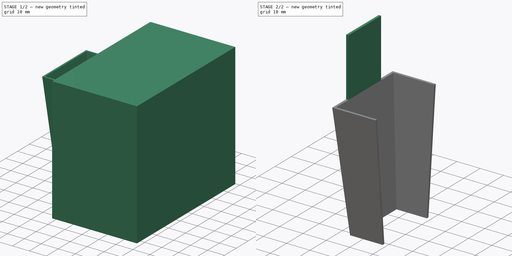
[diagram: build sequence overview — one tinted view per stage of 2, left to right]
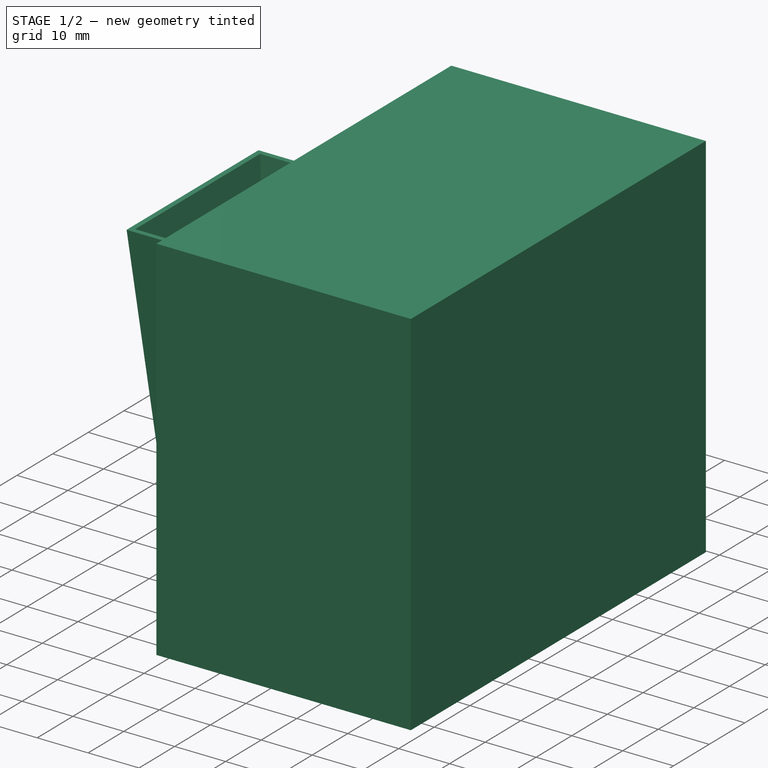
[diagram: stage 1 of 2 — iso view after this stage's code; geometry added in this stage tinted green]
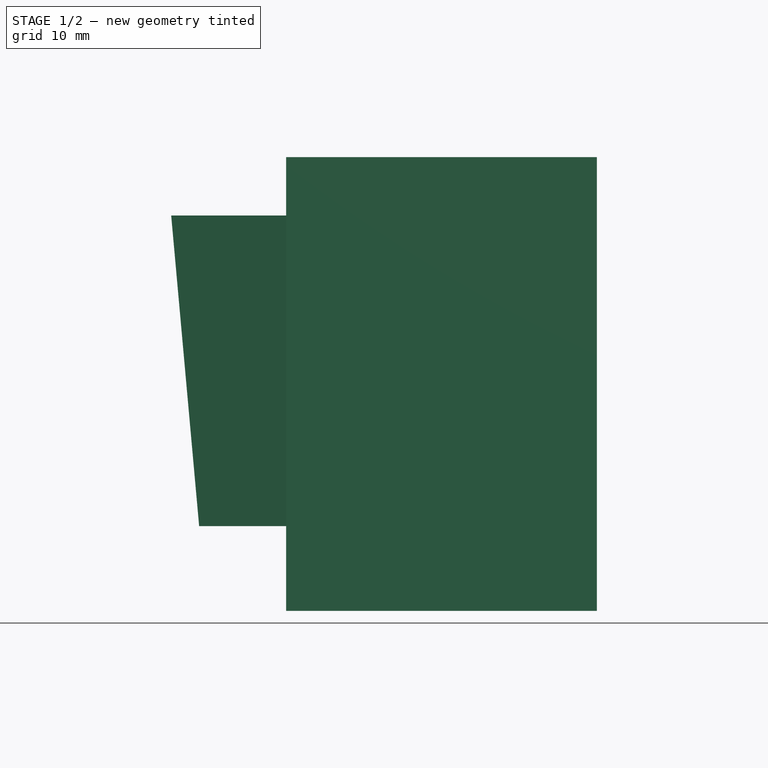
[diagram: stage 1 of 2 — front view after this stage's code; geometry added in this stage tinted green]
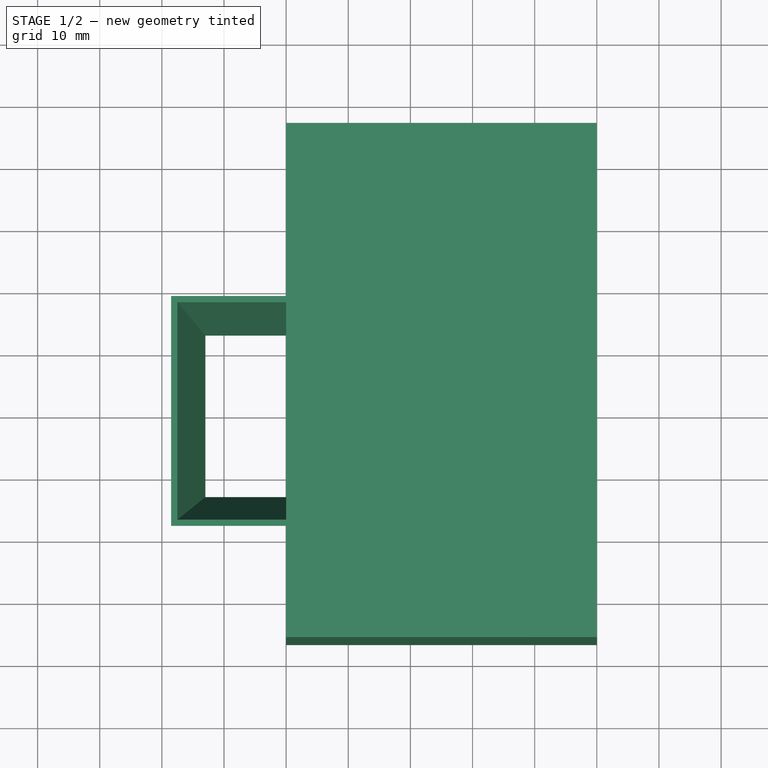
[diagram: stage 1 of 2 — top view after this stage's code; geometry added in this stage tinted green]
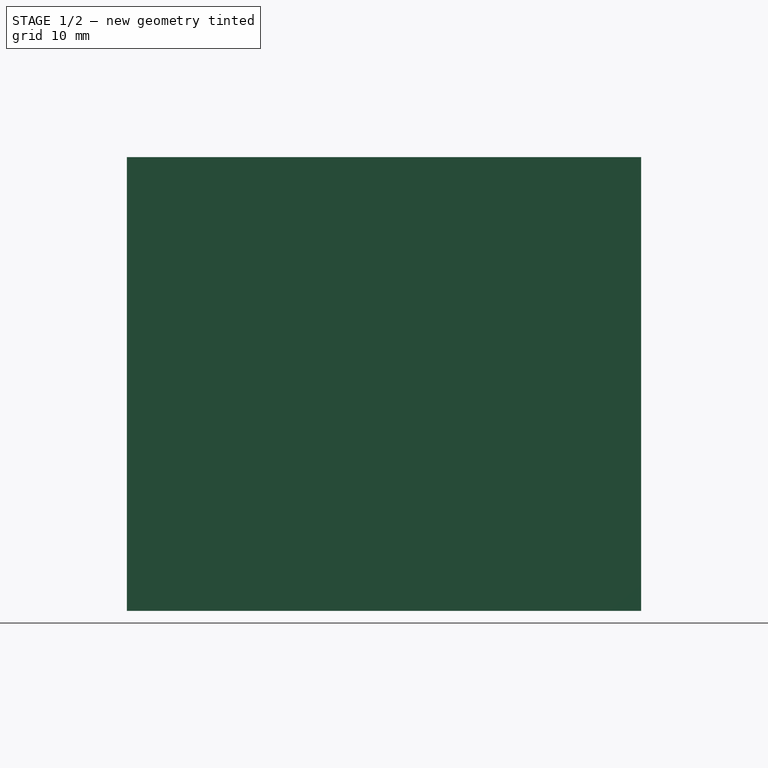
[diagram: stage 1 of 2 — right view after this stage's code; geometry added in this stage tinted green]
FCSTD DOCUMENT  (FreeCAD 1.0R39109 (Git))
Label: model3
License: All rights reserved
LicenseURL: https://en.wikipedia.org/wiki/All_rights_reserved
objects: Sketcher::SketchObject×4, PartDesign::Pad×2, PartDesign::Body×2, PartDesign::Plane×1, PartDesign::AdditiveLoft×1, PartDesign::Boolean×1
note: 22 computed .brp shape members not serialized (recipe doc carries the construction recipe); baked Part::Feature solids carry a one-line shape summary decoded from their .brp

FEATURE [Sketcher::SketchObject] Sketch
  ArcFitTolerance = 1e-06
  AttachmentSupport = -> [XY_Plane]
  FullyConstrained = true
  MakeInternals = false
  MapMode = 5
  sketch-geometry (10):
    g0: LineSegment StartX=-14 StartY=14 StartZ=0 EndX=-14 EndY=-14 EndZ=0
    g1: LineSegment StartX=-14 StartY=-14 StartZ=0 EndX=14 EndY=-14 EndZ=0
    g2: LineSegment StartX=14 StartY=-14 StartZ=0 EndX=14 EndY=14 EndZ=0
    g3: LineSegment StartX=14 StartY=14 StartZ=0 EndX=-14 EndY=14 EndZ=0
    g4: GeomPoint [constr] X=-1e-16 Y=-3e-16 Z=0
    g5: LineSegment StartX=-13 StartY=13 StartZ=0 EndX=-13 EndY=-13 EndZ=0
    g6: LineSegment StartX=-13 StartY=-13 StartZ=0 EndX=13 EndY=-13 EndZ=0
    g7: LineSegment StartX=13 StartY=-13 StartZ=0 EndX=13 EndY=13 EndZ=0
    g8: LineSegment StartX=13 StartY=13 StartZ=0 EndX=-13 EndY=13 EndZ=0
    g9: GeomPoint [constr] X=-1e-16 Y=-3e-16 Z=0
  constraints (24):
    c: Coincident(g0,g1)
    c: Coincident(g1,g2)
    c: Coincident(g2,g3)
    c: Coincident(g3,g0)
    c: Vertical(g0)
    c: Vertical(g2)
    c: Horizontal(g1)
    c: Horizontal(g3)
    c: Symmetric(g2,g0,g4)
    c: Distance(g0,g2) = 28
    c: Coincident(g4,g-1)
    c: Equal(g3,g2)
    c: Coincident(g5,g6)
    c: Coincident(g6,g7)
    c: Coincident(g7,g8)
    c: Coincident(g8,g5)
    c: Vertical(g5)
    c: Vertical(g7)
    c: Horizontal(g6)
    c: Horizontal(g8)
    c: Symmetric(g7,g5,g9)
    c: Coincident(g9,g4)
    c: DistanceX(g8,g8) = 26
    c: Equal(g8,g7)
FEATURE [PartDesign::Plane] DatumPlane
  AttachmentOffset = pos=(0,0,50) rot=(0,0,1;0rad)
  AttachmentSupport = -> [Sketch]
  Length = 60
  MapMode = 2
  Placement = pos=(0,0,50) rot=(0,0,1;0rad)
  ResizeMode = 0
  Width = 60
FEATURE [Sketcher::SketchObject] Sketch001
  ArcFitTolerance = 1e-06
  AttachmentSupport = -> [DatumPlane]
  FullyConstrained = true
  MakeInternals = false
  MapMode = 5
  Placement = pos=(0,0,50) rot=(0,0,1;0rad)
  sketch-geometry (10):
    g0: LineSegment StartX=-18.5 StartY=18.5 StartZ=0 EndX=-18.5 EndY=-18.5 EndZ=0
    g1: LineSegment StartX=-18.5 StartY=-18.5 StartZ=0 EndX=18.5 EndY=-18.5 EndZ=0
    g2: LineSegment StartX=18.5 StartY=-18.5 StartZ=0 EndX=18.5 EndY=18.5 EndZ=0
    g3: LineSegment StartX=18.5 StartY=18.5 StartZ=0 EndX=-18.5 EndY=18.5 EndZ=0
    g4: GeomPoint [constr] X=-2e-16 Y=0 Z=0
    g5: LineSegment StartX=-17.5 StartY=17.5 StartZ=0 EndX=-17.5 EndY=-17.5 EndZ=0
    g6: LineSegment StartX=-17.5 StartY=-17.5 StartZ=0 EndX=17.5 EndY=-17.5 EndZ=0
    g7: LineSegment StartX=17.5 StartY=-17.5 StartZ=0 EndX=17.5 EndY=17.5 EndZ=0
    g8: LineSegment StartX=17.5 StartY=17.5 StartZ=0 EndX=-17.5 EndY=17.5 EndZ=0
    g9: GeomPoint [constr] X=-2e-16 Y=0 Z=0
  constraints (24):
    c: Coincident(g0,g1)
    c: Coincident(g1,g2)
    c: Coincident(g2,g3)
    c: Coincident(g3,g0)
    c: Vertical(g0)
    c: Vertical(g2)
    c: Horizontal(g1)
    c: Horizontal(g3)
    c: Symmetric(g2,g0,g4)
    c: Distance(g0,g2) = 37
    c: Coincident(g4,g-1)
    c: Equal(g3,g2)
    c: Coincident(g5,g6)
    c: Coincident(g6,g7)
    c: Coincident(g7,g8)
    c: Coincident(g8,g5)
    c: Vertical(g5)
    c: Vertical(g7)
    c: Horizontal(g6)
    c: Horizontal(g8)
    c: Symmetric(g7,g5,g9)
    c: Distance(g5,g7) = 35
    c: Coincident(g9,g4)
    c: Equal(g8,g7)
FEATURE [PartDesign::AdditiveLoft] AdditiveLoft
  Closed = false
  Profile = -> Sketch
  Ruled = false
  Sections = -> [Sketch001]
  Suppressed = false
FEATURE [Sketcher::SketchObject] Sketch002
  ArcFitTolerance = 1e-06
  AttachmentSupport = -> [YZ_Plane001]
  FullyConstrained = false
  MakeInternals = false
  MapMode = 5
  Placement = pos=(0,0,0) rot=(0.57735,0.57735,0.57735;2.0944rad)
  sketch-geometry (4):
    g0: LineSegment StartX=-36.5784 StartY=59.3879 StartZ=0 EndX=-36.5784 EndY=-13.6394 EndZ=0
    g1: LineSegment StartX=-36.5784 StartY=-13.6394 StartZ=0 EndX=46.1913 EndY=-13.6394 EndZ=0
    g2: LineSegment StartX=46.1913 StartY=-13.6394 StartZ=0 EndX=46.1913 EndY=59.3879 EndZ=0
    g3: LineSegment StartX=46.1913 StartY=59.3879 StartZ=0 EndX=-36.5784 EndY=59.3879 EndZ=0
  constraints (8):
    c: Coincident(g0,g1)
    c: Coincident(g1,g2)
    c: Coincident(g2,g3)
    c: Coincident(g3,g0)
    c: Vertical(g0)
    c: Vertical(g2)
    c: Horizontal(g1)
    c: Horizontal(g3)
FEATURE [PartDesign::Pad] Pad
  Direction = (1,0,0)
  Length = 50
  Length2 = 10
  Placement = pos=(0,0,0) rot=(1,1,1;2.0944rad)
  Profile = -> Sketch002
  ReferenceAxis = -> Sketch002 [N_Axis]
  Refine = true
  Suppressed = false
  Type = 0
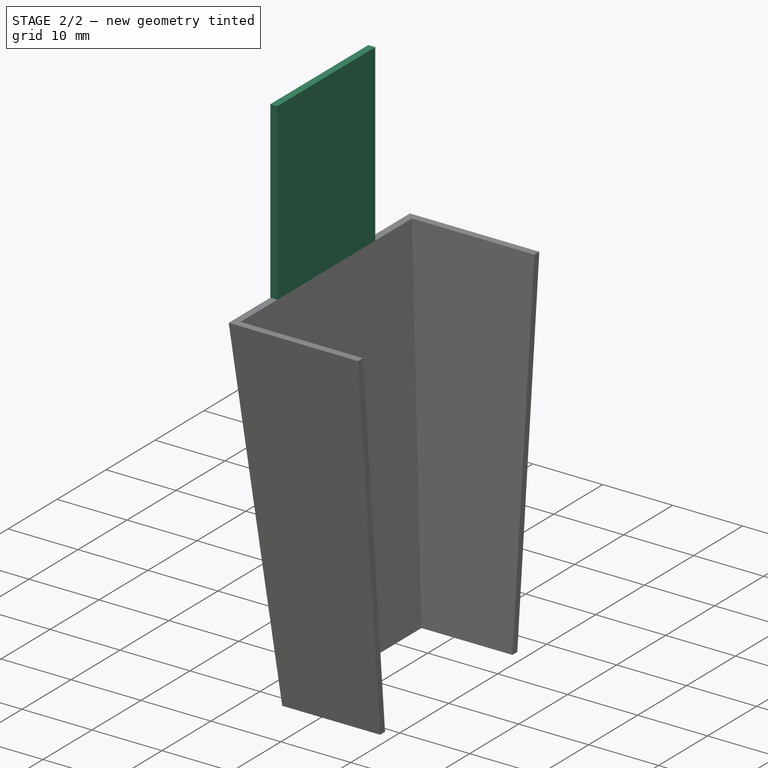
[diagram: stage 2 of 2 — iso view after this stage's code; geometry added in this stage tinted green]
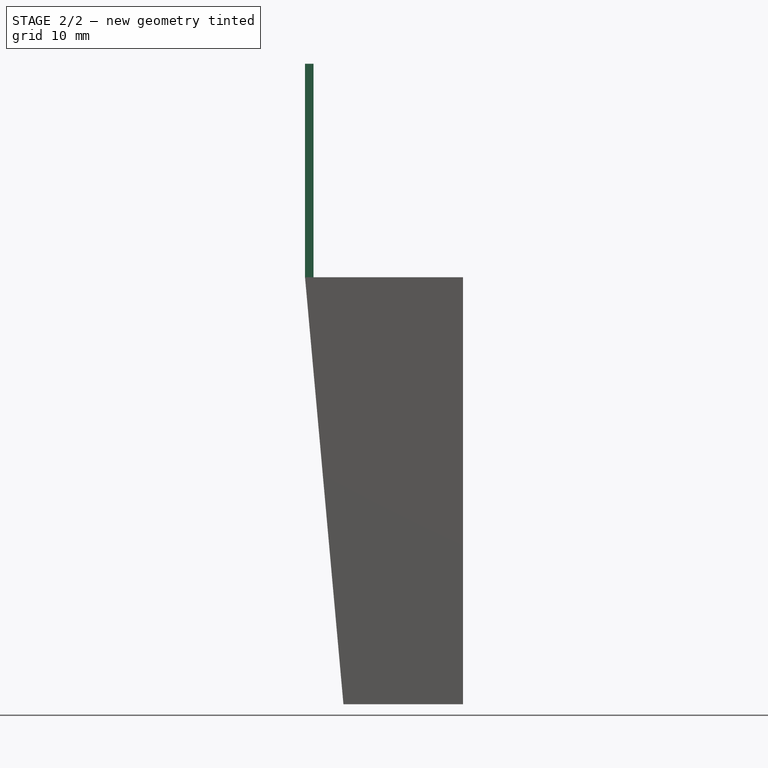
[diagram: stage 2 of 2 — front view after this stage's code; geometry added in this stage tinted green]
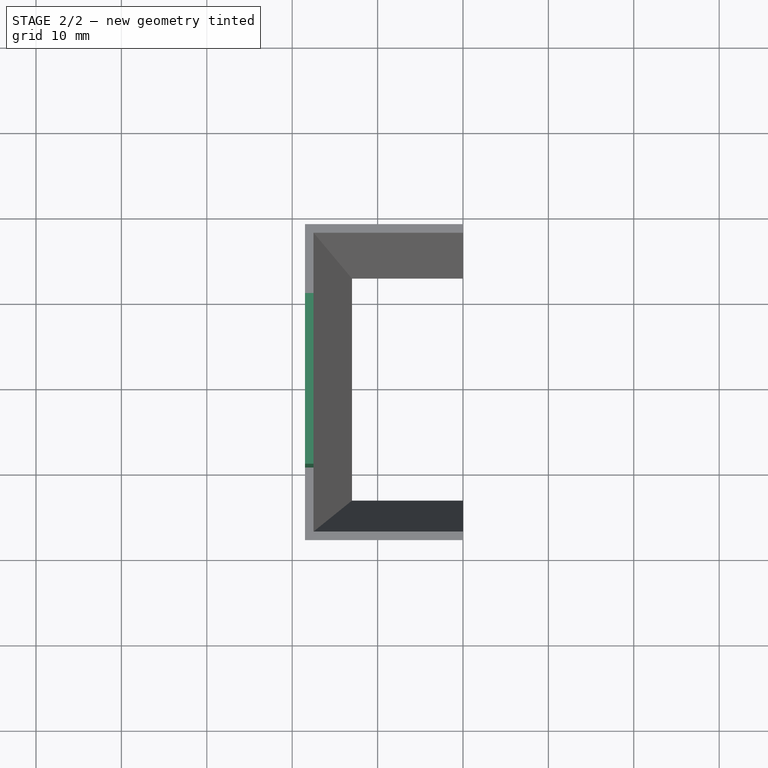
[diagram: stage 2 of 2 — top view after this stage's code; geometry added in this stage tinted green]
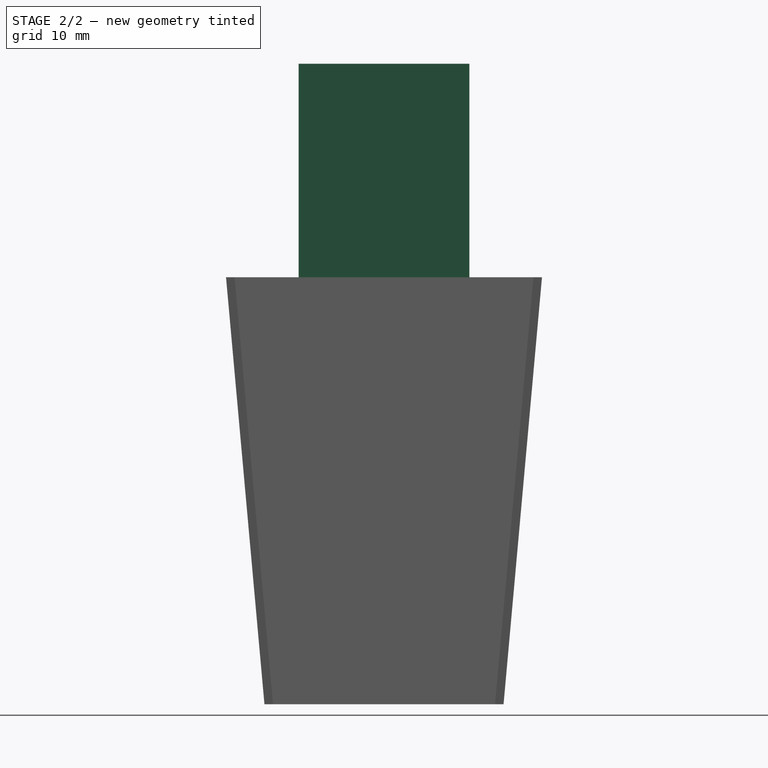
[diagram: stage 2 of 2 — right view after this stage's code; geometry added in this stage tinted green]
FEATURE [PartDesign::Body] Body001
  AllowCompound = false
  Group = -> [Sketch002,Pad]
  Origin = -> Origin001
  Tip = -> Pad
FEATURE [PartDesign::Boolean] Boolean
  BaseFeature = -> AdditiveLoft
  Group = -> [Body001]
  Refine = true
  Suppressed = false
  Type = 1
  UsePlacement = true
FEATURE [Sketcher::SketchObject] Sketch003
  ArcFitTolerance = 1e-06
  AttachmentSupport = -> [Boolean]
  ExternalGeometry = -> [Boolean]
  FullyConstrained = true
  MakeInternals = false
  MapMode = 5
  Placement = pos=(0,0,50) rot=(0,0,1;0rad)
  sketch-geometry (5):
    g0: LineSegment StartX=-18.5 StartY=-10 StartZ=0 EndX=-17.5 EndY=-10 EndZ=0
    g1: LineSegment StartX=-17.5 StartY=-10 StartZ=0 EndX=-17.5 EndY=10 EndZ=0
    g2: LineSegment StartX=-17.5 StartY=10 StartZ=0 EndX=-18.5 EndY=10 EndZ=0
    g3: LineSegment StartX=-18.5 StartY=10 StartZ=0 EndX=-18.5 EndY=-10 EndZ=0
    g4: GeomPoint X=-18.5 Y=0 Z=0
  constraints (13):
    c: Coincident(g0,g1)
    c: Coincident(g1,g2)
    c: Coincident(g2,g3)
    c: Coincident(g3,g0)
    c: Horizontal(g0)
    c: Horizontal(g2)
    c: Vertical(g1)
    c: Vertical(g3)
    c: PointOnObject(g0,g-4)
    c: PointOnObject(g1,g-3)
    c: Symmetric(g2,g0,g4)
    c: PointOnObject(g4,g-1)
    c: DistanceY(g1,g1) = 20
FEATURE [PartDesign::Pad] Pad001
  BaseFeature = -> Boolean
  Direction = (0,0,1)
  Length = 25
  Length2 = 10
  Profile = -> Sketch003
  ReferenceAxis = -> Sketch003 [N_Axis]
  Refine = true
  Suppressed = false
  Type = 0
FEATURE [PartDesign::Body] Body
  AllowCompound = false
  Group = -> [Sketch,DatumPlane,Sketch001,AdditiveLoft,Boolean,Sketch003,Pad001]
  Origin = -> Origin
  Tip = -> Pad001
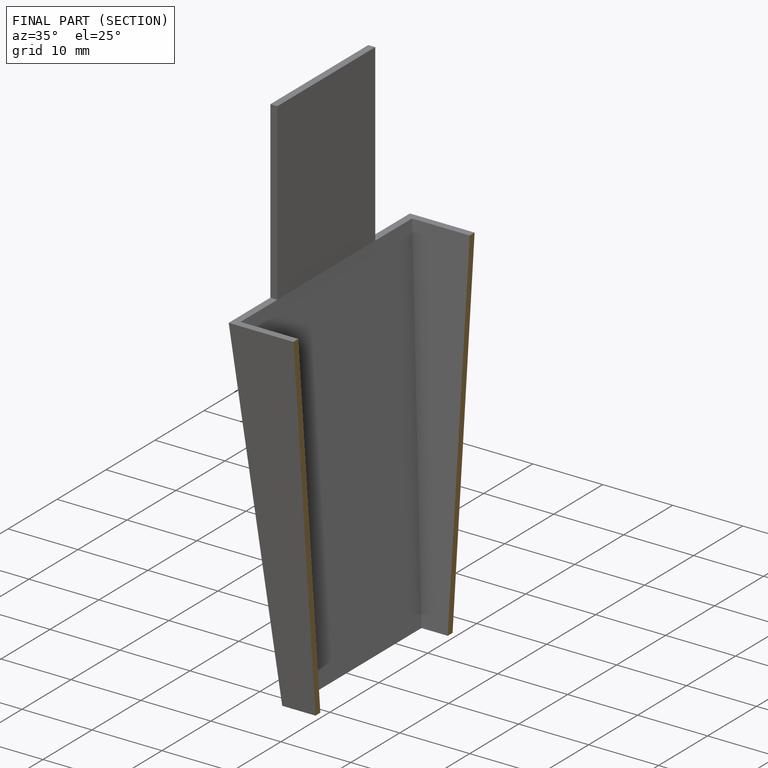
[diagram: finished part — half-section view (interior)]
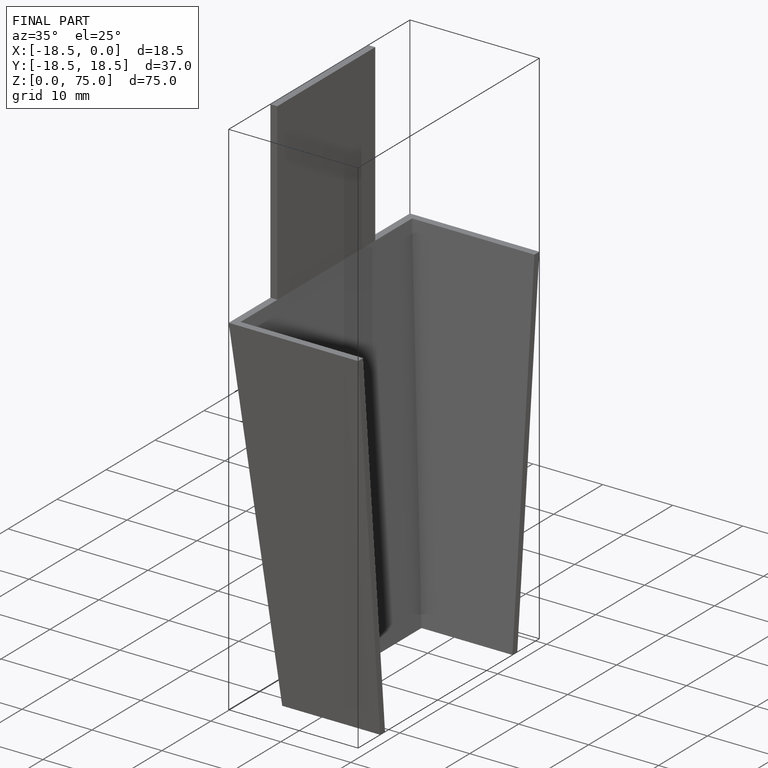
[diagram: finished part — iso view with bounding-box wireframe]
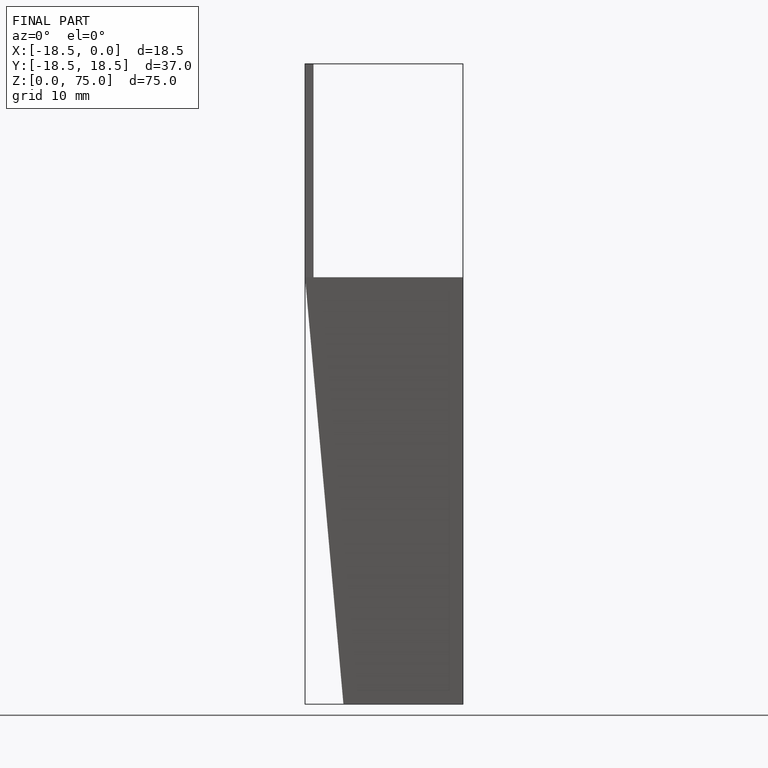
[diagram: finished part — front view with bounding-box wireframe]
